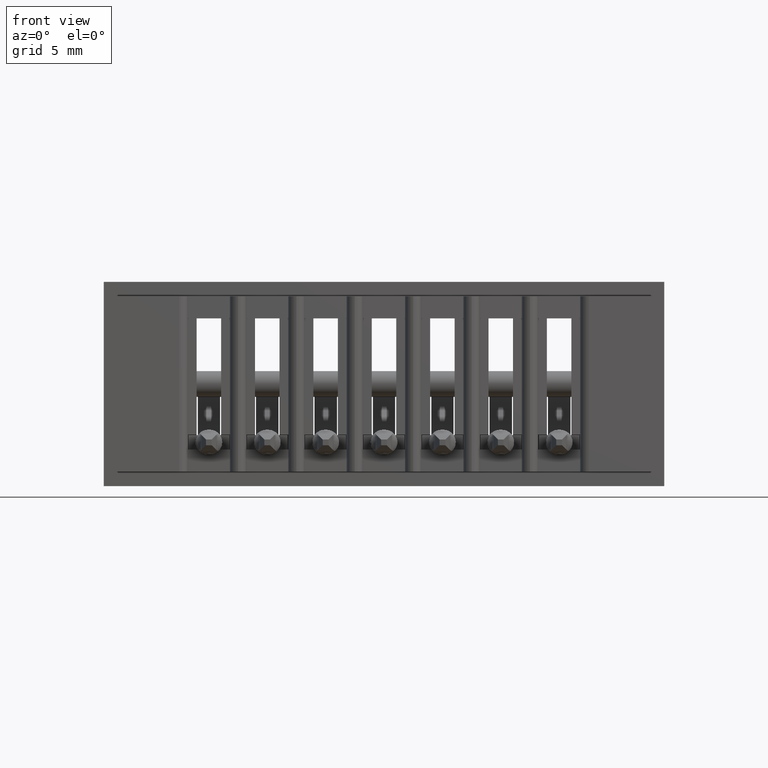
[diagram: clean part render]
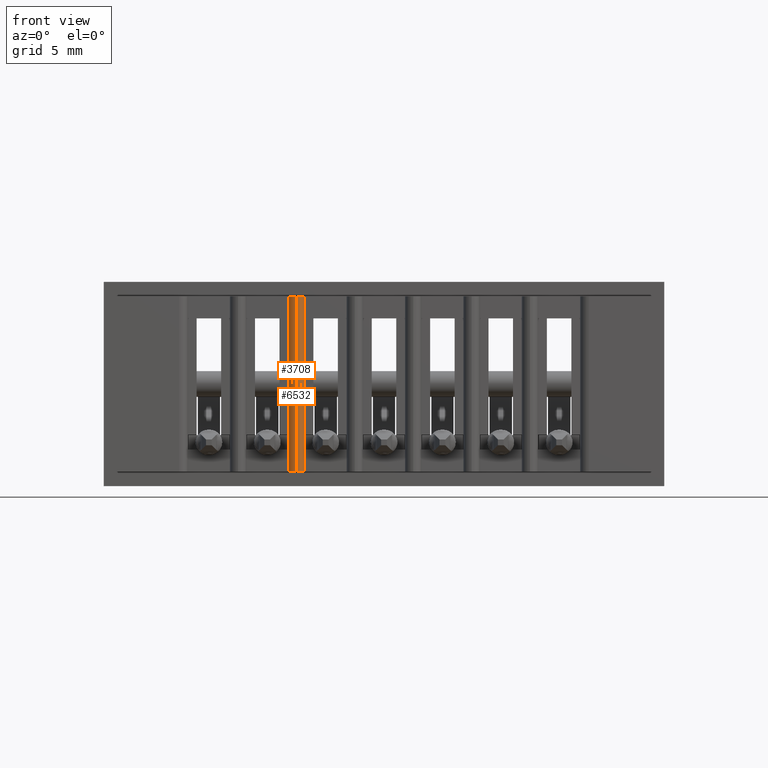
[diagram: same view with one multi-face feature highlighted, each face labeled with its STEP entity id]
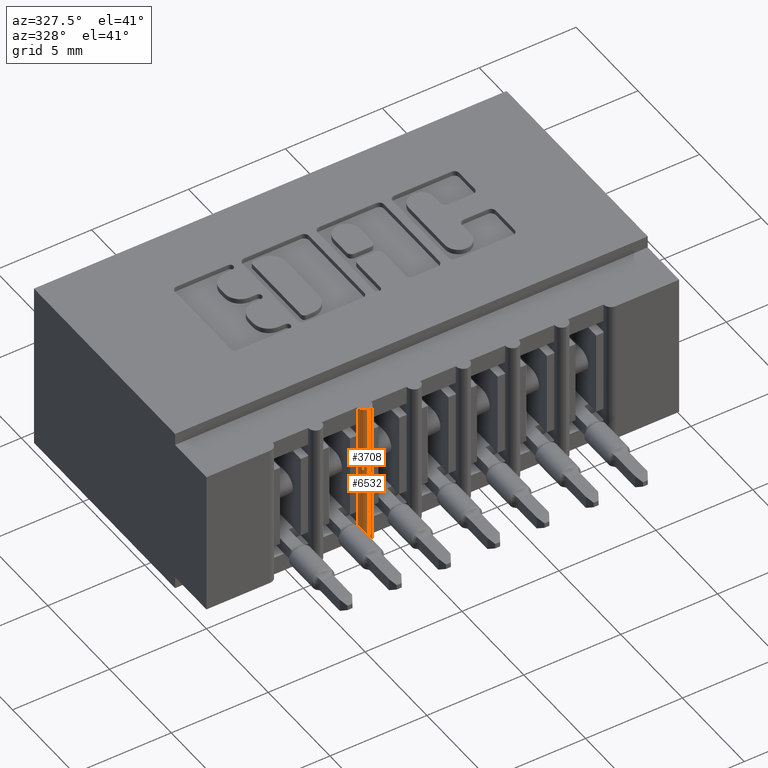
[diagram: same view with one multi-face feature highlighted, each face labeled with its STEP entity id]
A machine part, front view. The highlighted faces form ONE feature: a constant-radius fillet chain: 2 tangent blend faces with common blend radius 0.381 mm. The faces share edges in the B-rep.
A second angle (auxiliary view) of the same feature is appended — it is thin or edge-on in the first view.
Their STEP definitions:
[1] entity #6532 (Cylinder):
#131 = VECTOR ( 'NONE', #5683, 39.37007874015748100 ) ;
#267 = ORIENTED_EDGE ( 'NONE', *, *, #2324, .T. ) ;
#663 = CARTESIAN_POINT ( 'NONE',  ( 0.3439999999999996400, 0.01499999999999998900, -0.08849999999999995400 ) ) ;
#743 = CARTESIAN_POINT ( 'NONE',  ( 0.3439999999999996400, 0.01499999999999997500, -0.3499999999999999800 ) ) ;
#749 = DIRECTION ( 'NONE',  ( -0.0000000000000000000, -0.0000000000000000000, 1.000000000000000000 ) ) ;
#893 = VECTOR ( 'NONE', #14336, 39.37007874015748100 ) ;
#1507 = DIRECTION ( 'NONE',  ( -0.0000000000000000000, -0.0000000000000000000, 1.000000000000000000 ) ) ;
#1579 = CARTESIAN_POINT ( 'NONE',  ( 0.3439999999999996400, 0.01499999999999997500, -0.06250000000000001400 ) ) ;
#1669 = LINE ( 'NONE', #2016, #4632 ) ;
#1685 = CIRCLE ( 'NONE', #15654, 0.01499999999999997700 ) ;
#1867 = CARTESIAN_POINT ( 'NONE',  ( 0.3439999999999996400, 0.01499999999999997500, -0.3249999999999999600 ) ) ;
#2016 = CARTESIAN_POINT ( 'NONE',  ( 0.3299999999999992400, 3.337045290419808700E-005, -0.1874999999999999700 ) ) ;
#2324 = EDGE_CURVE ( 'NONE', #11895, #4602, #13564, .T. ) ;
#2397 = CARTESIAN_POINT ( 'NONE',  ( 0.3439999999999996400, 0.01500000000000003200, -0.2875000000000000900 ) ) ;
#2789 = LINE ( 'NONE', #12023, #5786 ) ;
#3017 = CARTESIAN_POINT ( 'NONE',  ( 0.3439999999999996400, 0.01499999999999997500, -0.3499999999999999800 ) ) ;
#3190 = DIRECTION ( 'NONE',  ( -0.0000000000000000000, -0.0000000000000000000, 1.000000000000000000 ) ) ;
#3223 = VERTEX_POINT ( 'NONE', #1867 ) ;
#3281 = EDGE_CURVE ( 'NONE', #10525, #3223, #12742, .T. ) ;
#3934 = EDGE_CURVE ( 'NONE', #11438, #11895, #5806, .T. ) ;
#4201 = DIRECTION ( 'NONE',  ( -0.0000000000000000000, 0.0000000000000000000, 1.000000000000000000 ) ) ;
#4385 = ORIENTED_EDGE ( 'NONE', *, *, #3934, .T. ) ;
#4393 = CARTESIAN_POINT ( 'NONE',  ( 0.3439999999999996400, 0.01499999999999997500, -0.3499999999999999800 ) ) ;
#4482 = DIRECTION ( 'NONE',  ( 0.0000000000000000000, 0.0000000000000000000, 1.000000000000000000 ) ) ;
#4602 = VERTEX_POINT ( 'NONE', #1579 ) ;
#4632 = VECTOR ( 'NONE', #5838, 39.37007874015748100 ) ;
#4652 = EDGE_LOOP ( 'NONE', ( #7986, #15570, #10260, #4385, #267, #9422, #13887, #6338 ) ) ;
#5598 = FACE_OUTER_BOUND ( 'NONE', #4652, .T. ) ;
#5601 = CARTESIAN_POINT ( 'NONE',  ( 0.3299999999999992400, 3.337045290420235600E-005, -0.02500000000000000500 ) ) ;
#5683 = DIRECTION ( 'NONE',  ( -0.0000000000000000000, -0.0000000000000000000, 1.000000000000000000 ) ) ;
#5779 = CARTESIAN_POINT ( 'NONE',  ( 0.3299999999999992400, 3.337045290419808700E-005, -0.3249999999999999600 ) ) ;
#5786 = VECTOR ( 'NONE', #3190, 39.37007874015748100 ) ;
#5806 = LINE ( 'NONE', #7057, #8759 ) ;
#5838 = DIRECTION ( 'NONE',  ( 0.0000000000000000000, 0.0000000000000000000, -1.000000000000000000 ) ) ;
#6173 = VERTEX_POINT ( 'NONE', #5601 ) ;
#6338 = ORIENTED_EDGE ( 'NONE', *, *, #14710, .T. ) ;
#6532 = ADVANCED_FACE ( 'NONE', ( #5598 ), #14853, .T. ) ;
#6712 = EDGE_CURVE ( 'NONE', #4602, #10772, #2789, .T. ) ;
#7057 = CARTESIAN_POINT ( 'NONE',  ( 0.3439999999999996400, 0.01499999999999997500, -0.3499999999999999800 ) ) ;
#7271 = CARTESIAN_POINT ( 'NONE',  ( 0.3439999999999996400, 0.01499999999999997500, -0.2615000000000001200 ) ) ;
#7696 = CARTESIAN_POINT ( 'NONE',  ( 0.3439999999999996400, 0.01499999999999997500, -0.02500000000000000500 ) ) ;
#7986 = ORIENTED_EDGE ( 'NONE', *, *, #3281, .T. ) ;
#8579 = EDGE_CURVE ( 'NONE', #6173, #10772, #1685, .T. ) ;
#8665 = EDGE_CURVE ( 'NONE', #16177, #11438, #10559, .T. ) ;
#8759 = VECTOR ( 'NONE', #749, 39.37007874015748100 ) ;
#9422 = ORIENTED_EDGE ( 'NONE', *, *, #6712, .T. ) ;
#9579 = DIRECTION ( 'NONE',  ( -0.0000000000000000000, -0.0000000000000000000, 1.000000000000000000 ) ) ;
#9759 = AXIS2_PLACEMENT_3D ( 'NONE', #12868, #1507, #15332 ) ;
#10260 = ORIENTED_EDGE ( 'NONE', *, *, #8665, .T. ) ;
#10525 = VERTEX_POINT ( 'NONE', #5779 ) ;
#10559 = LINE ( 'NONE', #3017, #893 ) ;
#10772 = VERTEX_POINT ( 'NONE', #7696 ) ;
#11313 = EDGE_CURVE ( 'NONE', #3223, #16177, #15119, .T. ) ;
#11438 = VERTEX_POINT ( 'NONE', #7271 ) ;
#11761 = CARTESIAN_POINT ( 'NONE',  ( 0.3289999999999996800, 0.01499999999999997700, -0.02500000000000000500 ) ) ;
#11895 = VERTEX_POINT ( 'NONE', #663 ) ;
#12016 = CARTESIAN_POINT ( 'NONE',  ( 0.3289999999999996800, 0.01499999999999997700, -0.3249999999999999600 ) ) ;
#12023 = CARTESIAN_POINT ( 'NONE',  ( 0.3439999999999996400, 0.01499999999999997500, -0.3499999999999999800 ) ) ;
#12742 = CIRCLE ( 'NONE', #14662, 0.01499999999999997700 ) ;
#12868 = CARTESIAN_POINT ( 'NONE',  ( 0.3289999999999996800, 0.01499999999999997700, -0.3499999999999999800 ) ) ;
#13039 = DIRECTION ( 'NONE',  ( 1.000000000000000000, 0.0000000000000000000, 0.0000000000000000000 ) ) ;
#13293 = DIRECTION ( 'NONE',  ( 1.000000000000000000, 0.0000000000000000000, 0.0000000000000000000 ) ) ;
#13564 = LINE ( 'NONE', #4393, #131 ) ;
#13887 = ORIENTED_EDGE ( 'NONE', *, *, #8579, .F. ) ;
#14336 = DIRECTION ( 'NONE',  ( -0.0000000000000000000, -0.0000000000000000000, 1.000000000000000000 ) ) ;
#14662 = AXIS2_PLACEMENT_3D ( 'NONE', #12016, #4482, #13293 ) ;
#14710 = EDGE_CURVE ( 'NONE', #6173, #10525, #1669, .T. ) ;
#14853 = CYLINDRICAL_SURFACE ( 'NONE', #9759, 0.01499999999999997700 ) ;
#15119 = LINE ( 'NONE', #743, #15507 ) ;
#15332 = DIRECTION ( 'NONE',  ( 1.000000000000000000, 0.0000000000000000000, 0.0000000000000000000 ) ) ;
#15507 = VECTOR ( 'NONE', #9579, 39.37007874015748100 ) ;
#15570 = ORIENTED_EDGE ( 'NONE', *, *, #11313, .T. ) ;
#15654 = AXIS2_PLACEMENT_3D ( 'NONE', #11761, #4201, #13039 ) ;
#16177 = VERTEX_POINT ( 'NONE', #2397 ) ;
[2] entity #3708 (Cylinder):
#204 = EDGE_CURVE ( 'NONE', #6173, #10365, #8110, .T. ) ;
#436 = DIRECTION ( 'NONE',  ( -0.0000000000000000000, -0.0000000000000000000, 1.000000000000000000 ) ) ;
#554 = DIRECTION ( 'NONE',  ( 1.000000000000000000, 0.0000000000000000000, 0.0000000000000000000 ) ) ;
#787 = DIRECTION ( 'NONE',  ( 1.000000000000000000, 0.0000000000000000000, 0.0000000000000000000 ) ) ;
#980 = AXIS2_PLACEMENT_3D ( 'NONE', #15888, #8345, #787 ) ;
#1291 = VECTOR ( 'NONE', #7648, 39.37007874015748100 ) ;
#1575 = VERTEX_POINT ( 'NONE', #3176 ) ;
#1669 = LINE ( 'NONE', #2016, #4632 ) ;
#1873 = VECTOR ( 'NONE', #4700, 39.37007874015748100 ) ;
#2009 = CARTESIAN_POINT ( 'NONE',  ( 0.3159999999999997300, 0.01499999999999993200, -0.3249999999999999600 ) ) ;
#2016 = CARTESIAN_POINT ( 'NONE',  ( 0.3299999999999992400, 3.337045290419808700E-005, -0.1874999999999999700 ) ) ;
#2258 = VECTOR ( 'NONE', #436, 39.37007874015748100 ) ;
#2353 = VERTEX_POINT ( 'NONE', #9525 ) ;
#3176 = CARTESIAN_POINT ( 'NONE',  ( 0.3159999999999997300, 0.01499999999999993200, -0.2875000000000000900 ) ) ;
#3402 = LINE ( 'NONE', #11358, #9742 ) ;
#3708 = ADVANCED_FACE ( 'NONE', ( #16043 ), #8975, .T. ) ;
#4529 = AXIS2_PLACEMENT_3D ( 'NONE', #15641, #8116, #554 ) ;
#4632 = VECTOR ( 'NONE', #5838, 39.37007874015748100 ) ;
#4700 = DIRECTION ( 'NONE',  ( -0.0000000000000000000, -0.0000000000000000000, 1.000000000000000000 ) ) ;
#4753 = VERTEX_POINT ( 'NONE', #2009 ) ;
#5003 = EDGE_CURVE ( 'NONE', #7225, #11550, #11356, .T. ) ;
#5238 = CIRCLE ( 'NONE', #4529, 0.01499999999999997700 ) ;
#5601 = CARTESIAN_POINT ( 'NONE',  ( 0.3299999999999992400, 3.337045290420235600E-005, -0.02500000000000000500 ) ) ;
#5779 = CARTESIAN_POINT ( 'NONE',  ( 0.3299999999999992400, 3.337045290419808700E-005, -0.3249999999999999600 ) ) ;
#5838 = DIRECTION ( 'NONE',  ( 0.0000000000000000000, 0.0000000000000000000, -1.000000000000000000 ) ) ;
#6173 = VERTEX_POINT ( 'NONE', #5601 ) ;
#6439 = AXIS2_PLACEMENT_3D ( 'NONE', #14087, #14150, #6615 ) ;
#6615 = DIRECTION ( 'NONE',  ( 1.000000000000000000, 0.0000000000000000000, 0.0000000000000000000 ) ) ;
#6820 = ORIENTED_EDGE ( 'NONE', *, *, #14710, .F. ) ;
#7225 = VERTEX_POINT ( 'NONE', #8875 ) ;
#7360 = ORIENTED_EDGE ( 'NONE', *, *, #15741, .F. ) ;
#7648 = DIRECTION ( 'NONE',  ( -0.0000000000000000000, -0.0000000000000000000, 1.000000000000000000 ) ) ;
#8110 = CIRCLE ( 'NONE', #980, 0.01499999999999997700 ) ;
#8116 = DIRECTION ( 'NONE',  ( -0.0000000000000000000, -0.0000000000000000000, -1.000000000000000000 ) ) ;
#8345 = DIRECTION ( 'NONE',  ( 0.0000000000000000000, -0.0000000000000000000, -1.000000000000000000 ) ) ;
#8797 = EDGE_CURVE ( 'NONE', #2353, #7225, #15278, .T. ) ;
#8875 = CARTESIAN_POINT ( 'NONE',  ( 0.3159999999999997300, 0.01499999999999993200, -0.08849999999999995400 ) ) ;
#8975 = CYLINDRICAL_SURFACE ( 'NONE', #6439, 0.01499999999999997700 ) ;
#8985 = LINE ( 'NONE', #11760, #2258 ) ;
#9525 = CARTESIAN_POINT ( 'NONE',  ( 0.3159999999999997300, 0.01500000000000002700, -0.2615000000000001800 ) ) ;
#9742 = VECTOR ( 'NONE', #12633, 39.37007874015748100 ) ;
#9958 = ORIENTED_EDGE ( 'NONE', *, *, #16271, .F. ) ;
#10365 = VERTEX_POINT ( 'NONE', #15521 ) ;
#10525 = VERTEX_POINT ( 'NONE', #5779 ) ;
#11356 = LINE ( 'NONE', #12607, #1291 ) ;
#11358 = CARTESIAN_POINT ( 'NONE',  ( 0.3159999999999997300, 0.01499999999999993200, -0.3499999999999999800 ) ) ;
#11550 = VERTEX_POINT ( 'NONE', #16248 ) ;
#11760 = CARTESIAN_POINT ( 'NONE',  ( 0.3159999999999997300, 0.01499999999999993200, -0.3499999999999999800 ) ) ;
#11876 = VECTOR ( 'NONE', #15184, 39.37007874015748100 ) ;
#12272 = LINE ( 'NONE', #13983, #11876 ) ;
#12470 = EDGE_CURVE ( 'NONE', #1575, #2353, #8985, .T. ) ;
#12490 = EDGE_CURVE ( 'NONE', #10525, #4753, #5238, .T. ) ;
#12607 = CARTESIAN_POINT ( 'NONE',  ( 0.3159999999999997300, 0.01499999999999993200, -0.3499999999999999800 ) ) ;
#12633 = DIRECTION ( 'NONE',  ( -0.0000000000000000000, -0.0000000000000000000, 1.000000000000000000 ) ) ;
#13547 = EDGE_LOOP ( 'NONE', ( #6820, #13552, #9958, #15412, #16139, #14012, #7360, #16084 ) ) ;
#13552 = ORIENTED_EDGE ( 'NONE', *, *, #204, .T. ) ;
#13983 = CARTESIAN_POINT ( 'NONE',  ( 0.3159999999999997300, 0.01499999999999993200, -0.3499999999999999800 ) ) ;
#14012 = ORIENTED_EDGE ( 'NONE', *, *, #12470, .F. ) ;
#14087 = CARTESIAN_POINT ( 'NONE',  ( 0.3309999999999996800, 0.01499999999999991600, -0.3499999999999999800 ) ) ;
#14150 = DIRECTION ( 'NONE',  ( -0.0000000000000000000, -0.0000000000000000000, 1.000000000000000000 ) ) ;
#14710 = EDGE_CURVE ( 'NONE', #6173, #10525, #1669, .T. ) ;
#15184 = DIRECTION ( 'NONE',  ( -0.0000000000000000000, -0.0000000000000000000, 1.000000000000000000 ) ) ;
#15278 = LINE ( 'NONE', #16021, #1873 ) ;
#15412 = ORIENTED_EDGE ( 'NONE', *, *, #5003, .F. ) ;
#15521 = CARTESIAN_POINT ( 'NONE',  ( 0.3159999999999997300, 0.01499999999999993200, -0.02500000000000000500 ) ) ;
#15641 = CARTESIAN_POINT ( 'NONE',  ( 0.3309999999999996800, 0.01499999999999991600, -0.3249999999999999600 ) ) ;
#15741 = EDGE_CURVE ( 'NONE', #4753, #1575, #3402, .T. ) ;
#15888 = CARTESIAN_POINT ( 'NONE',  ( 0.3309999999999996800, 0.01499999999999991600, -0.02500000000000000500 ) ) ;
#16021 = CARTESIAN_POINT ( 'NONE',  ( 0.3159999999999997300, 0.01499999999999993200, -0.3499999999999999800 ) ) ;
#16043 = FACE_OUTER_BOUND ( 'NONE', #13547, .T. ) ;
#16084 = ORIENTED_EDGE ( 'NONE', *, *, #12490, .F. ) ;
#16139 = ORIENTED_EDGE ( 'NONE', *, *, #8797, .F. ) ;
#16248 = CARTESIAN_POINT ( 'NONE',  ( 0.3159999999999997300, 0.01499999999999998900, -0.06250000000000002800 ) ) ;
#16271 = EDGE_CURVE ( 'NONE', #11550, #10365, #12272, .T. ) ;